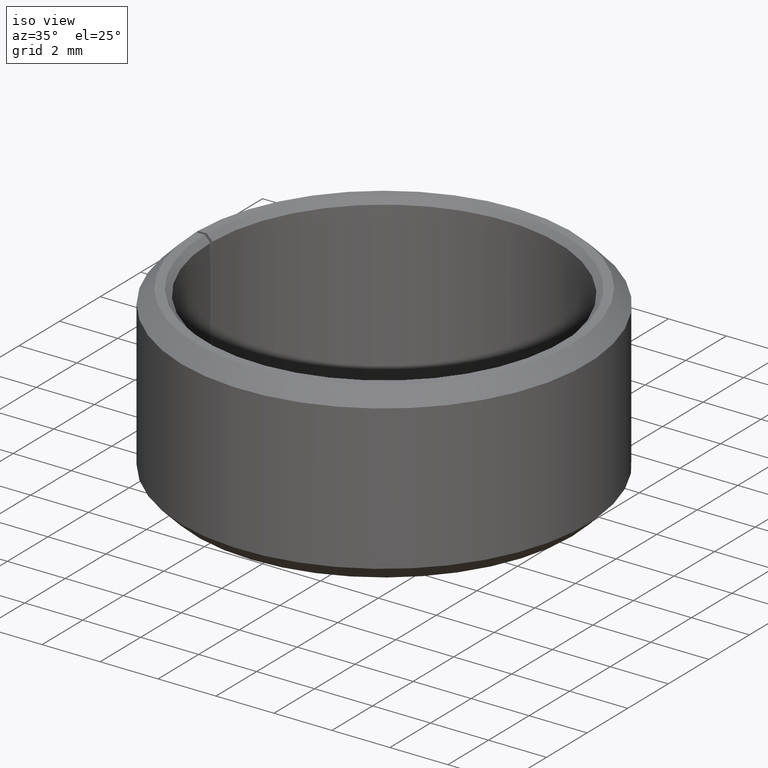
[diagram: clean part render]
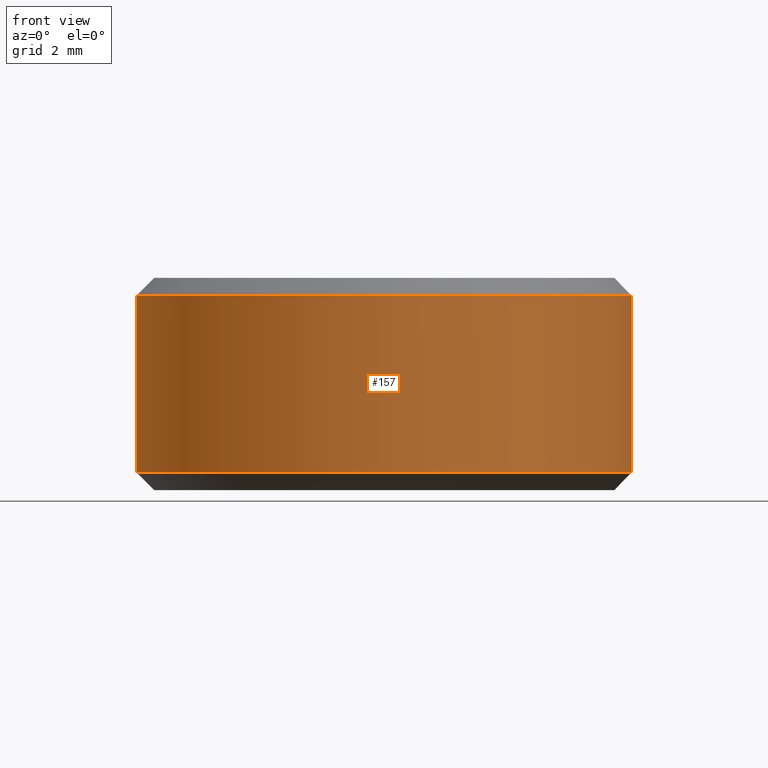
[diagram: tour spotlight — one face highlighted and labeled with its STEP entity id]
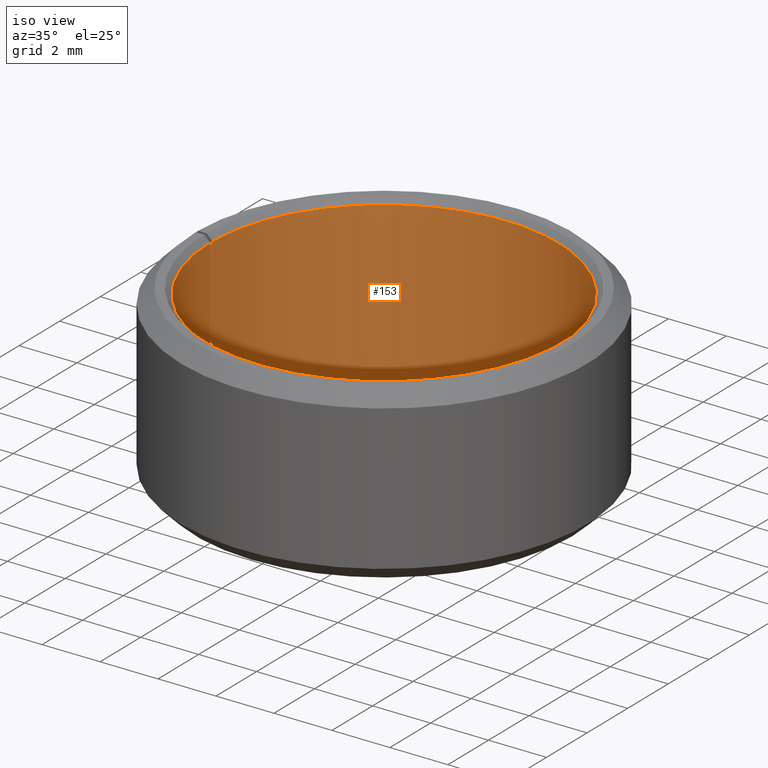
[diagram: tour spotlight — one face highlighted and labeled with its STEP entity id]
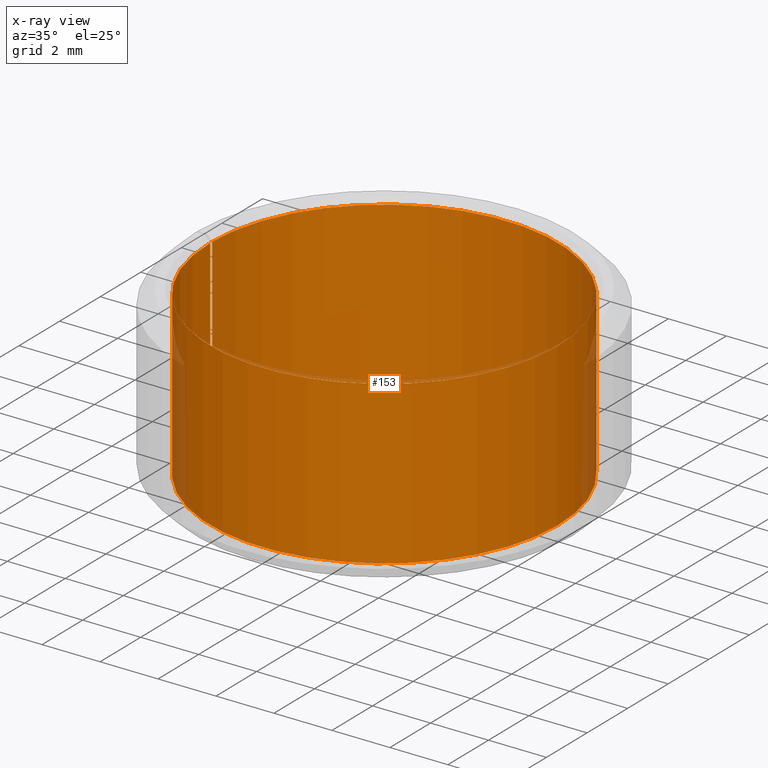
[diagram: x-ray of the same camera — body ghosted, this tour face saturated]
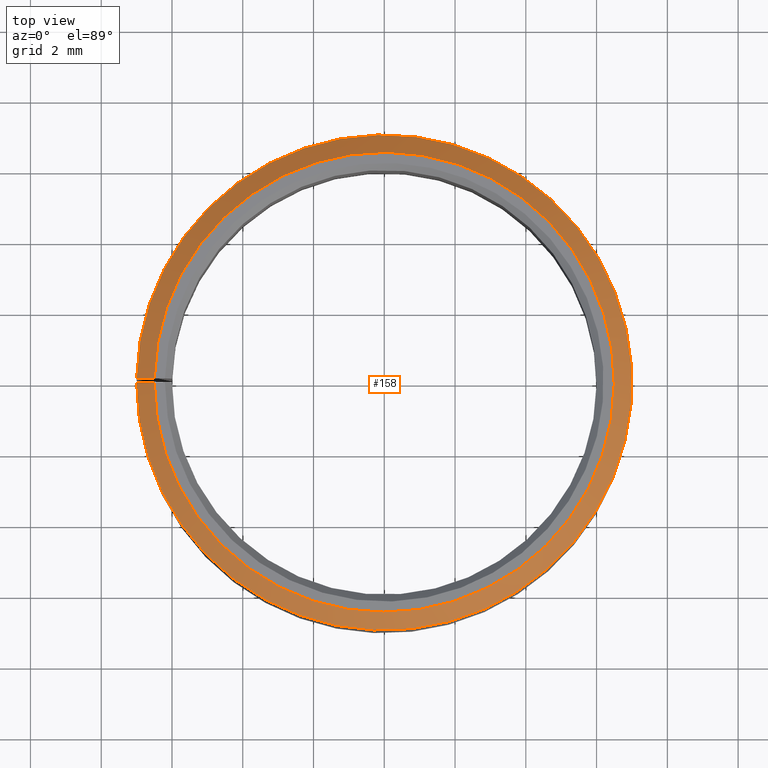
[diagram: tour spotlight — one face highlighted and labeled with its STEP entity id]
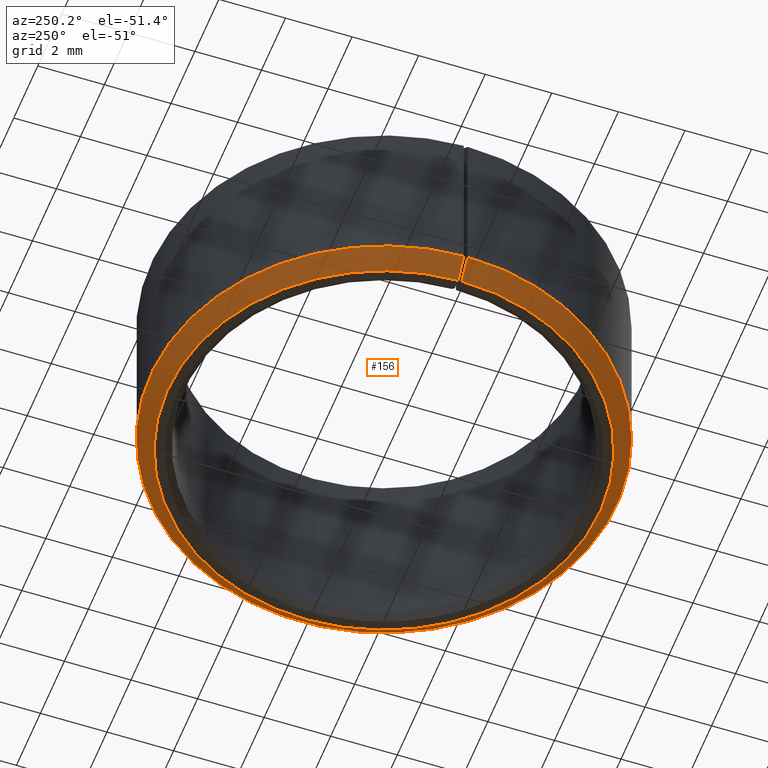
[diagram: tour spotlight — one face highlighted and labeled with its STEP entity id]
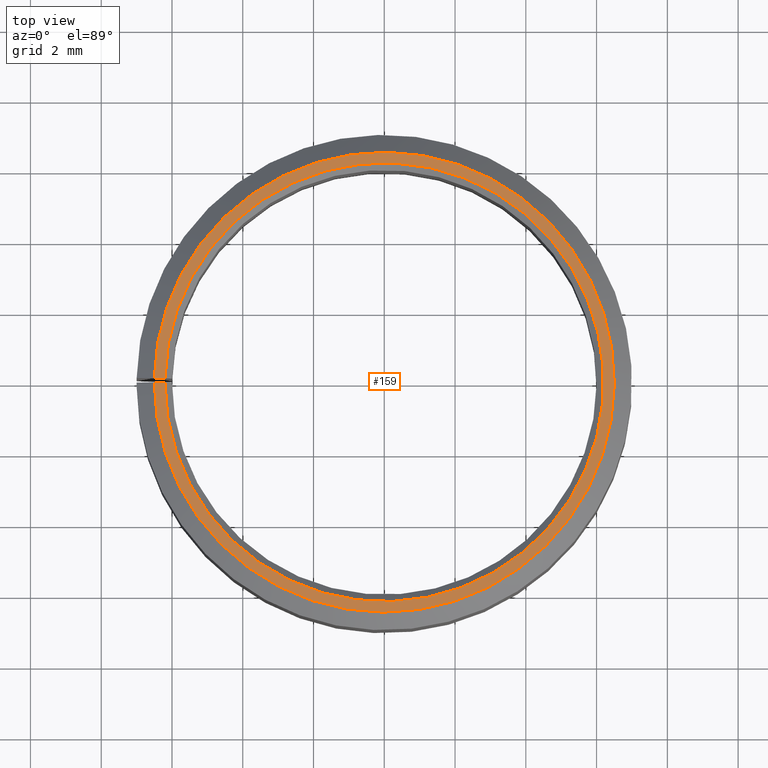
[diagram: tour spotlight — one face highlighted and labeled with its STEP entity id]
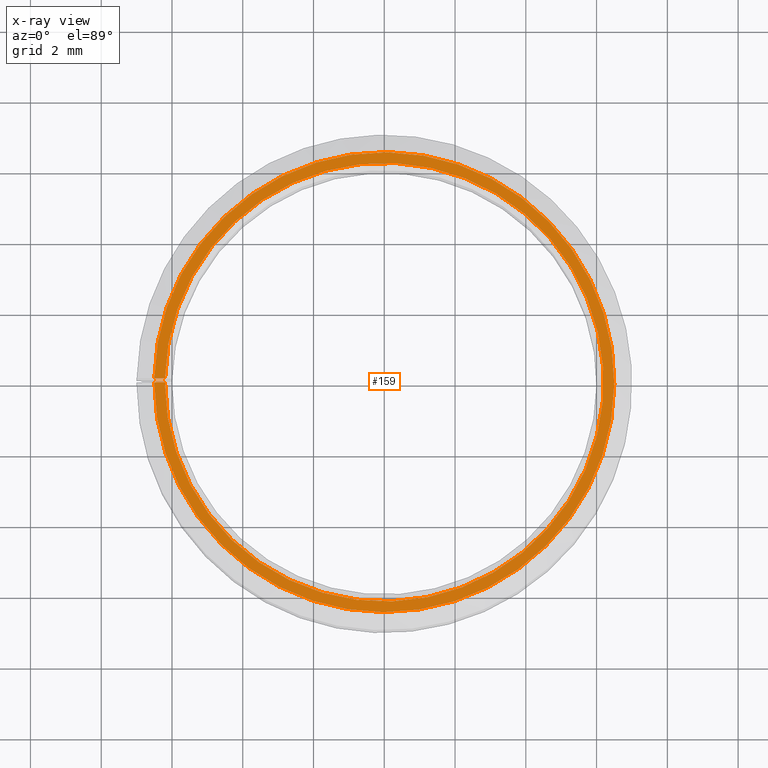
[diagram: x-ray of the same camera — body ghosted, this tour face saturated]
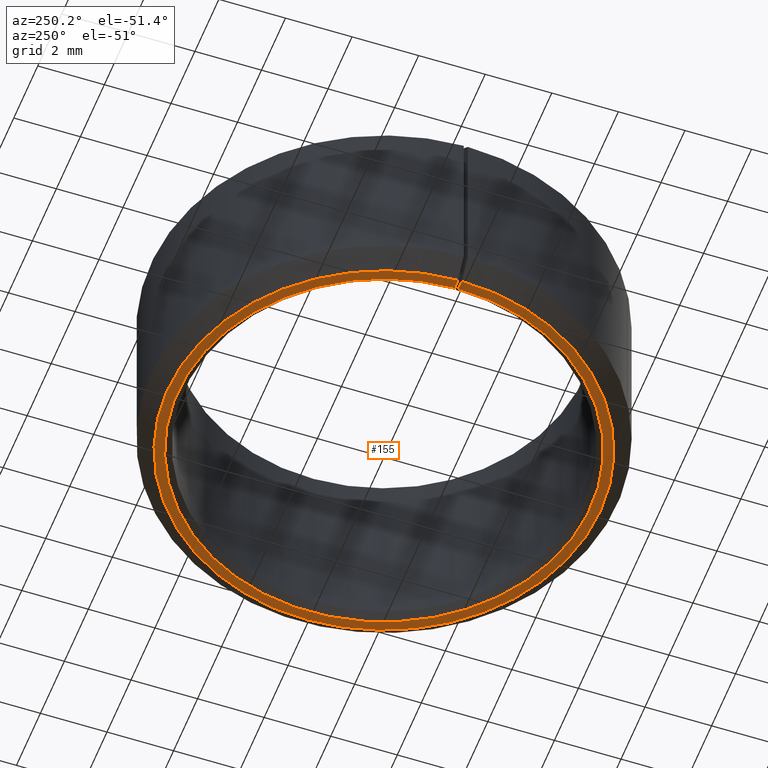
[diagram: tour spotlight — one face highlighted and labeled with its STEP entity id]
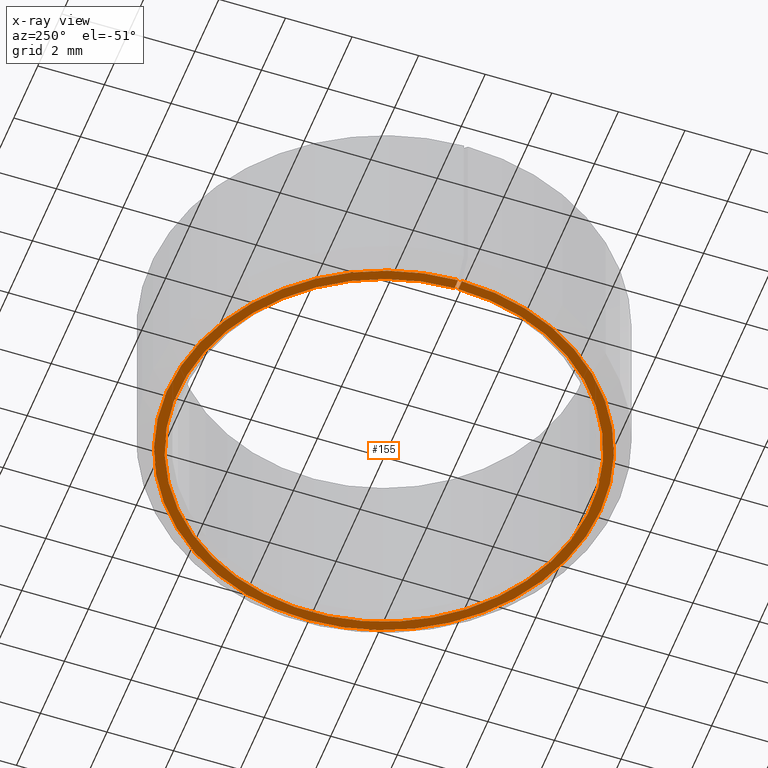
[diagram: x-ray of the same camera — body ghosted, this tour face saturated]
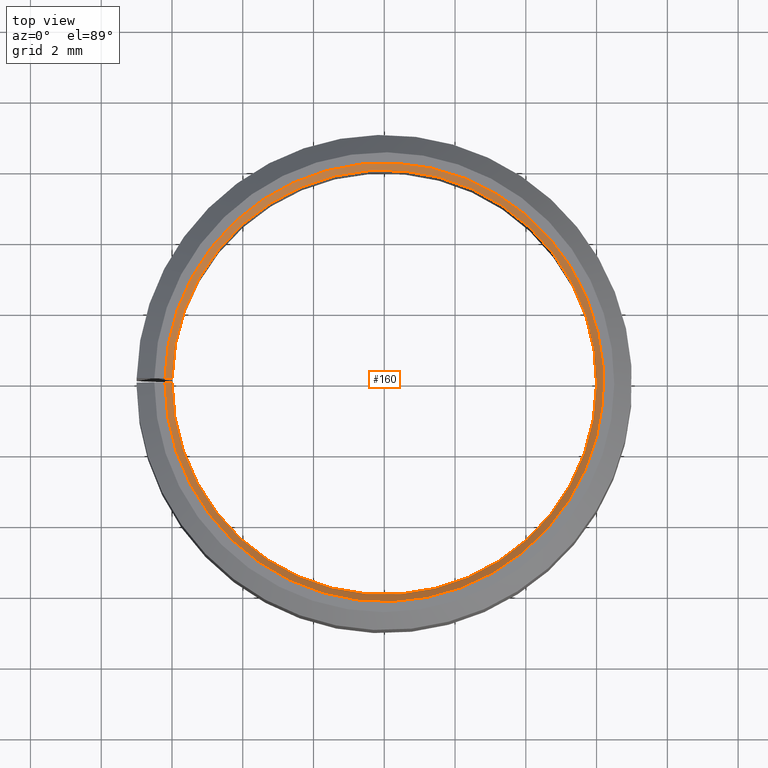
[diagram: tour spotlight — one face highlighted and labeled with its STEP entity id]
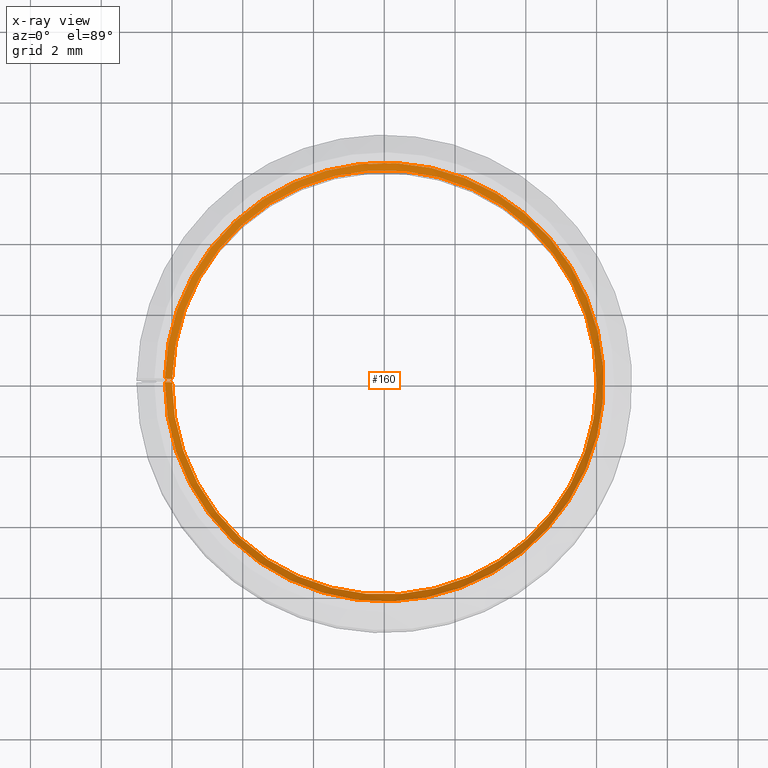
[diagram: x-ray of the same camera — body ghosted, this tour face saturated]
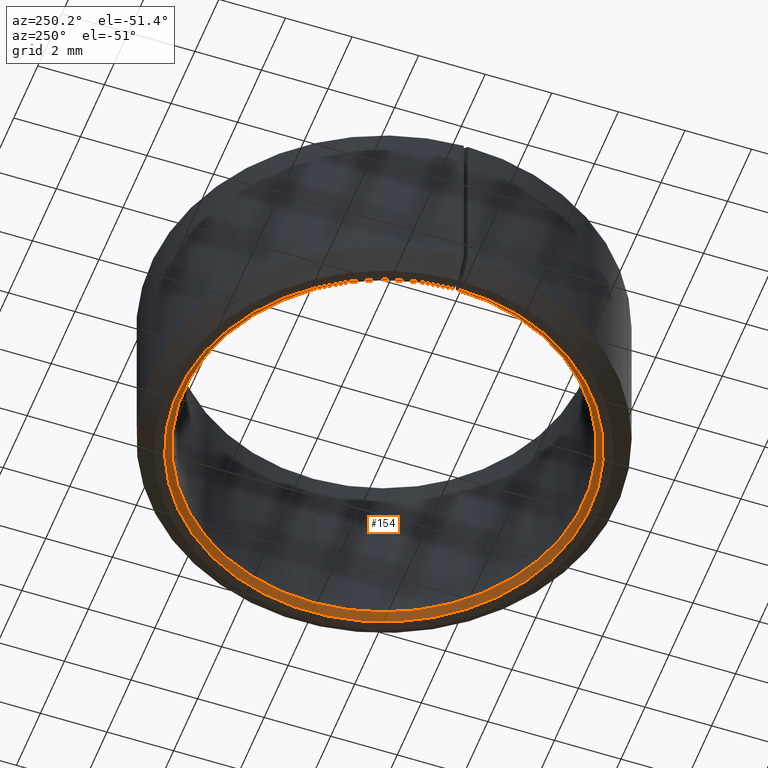
[diagram: tour spotlight — one face highlighted and labeled with its STEP entity id]
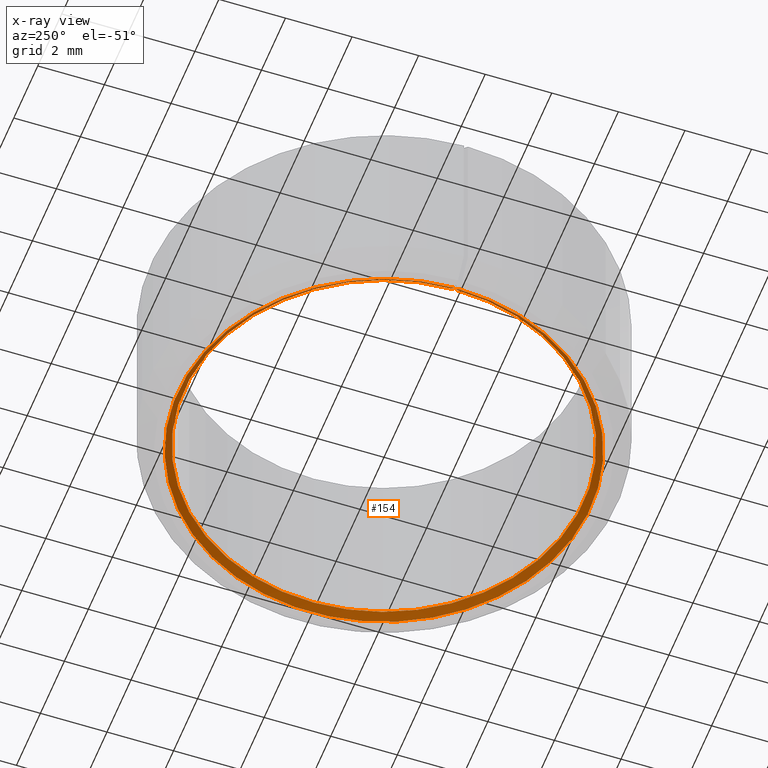
[diagram: x-ray of the same camera — body ghosted, this tour face saturated]
A machine part: a face-by-face anatomy tour. The part has 10 B-rep faces; the first image is the clean iso view, then the 8 largest visible faces are spotlighted one at a time (largest first), each with its STEP entity span.

Face 1 — front view, entity #157. In plain terms, the highlighted cylindrical surface (partial cylindrical patch) has radius 7 mm, axis along (-0, 0, -1).
Definition (entity closure, byte-faithful):
#157=ADVANCED_FACE('',(#173),#174,.T.);
#173=FACE_OUTER_BOUND('',#194,.T.);
#174=CYLINDRICAL_SURFACE('',#195,0.007);
#194=EDGE_LOOP('',(#234,#235,#236,#237));
#195=AXIS2_PLACEMENT_3D('',#238,#239,#240);
#234=ORIENTED_EDGE('',*,*,#297,.T.);
#235=ORIENTED_EDGE('',*,*,#298,.F.);
#236=ORIENTED_EDGE('',*,*,#294,.F.);
#237=ORIENTED_EDGE('',*,*,#299,.T.);
#238=CARTESIAN_POINT('',(-3.46944695195362E-018,-2.60208521396521E-018,-5.42101086242752E-020));
#239=DIRECTION('',(6.12323399573677E-017,0.0,-1.0));
#240=DIRECTION('',(-1.0,0.0,-6.12323399573677E-017));
#294=EDGE_CURVE('',#326,#327,#328,.T.);
#297=EDGE_CURVE('',#331,#332,#333,.T.);
#298=EDGE_CURVE('',#327,#332,#334,.T.);
#299=EDGE_CURVE('',#326,#331,#335,.T.);
#326=VERTEX_POINT('',#372);
#327=VERTEX_POINT('',#373);
#328=CIRCLE('',#374,0.007);
#331=VERTEX_POINT('',#379);
#332=VERTEX_POINT('',#380);
#333=CIRCLE('',#381,0.007);
#334=LINE('',#382,#383);
#335=LINE('',#384,#385);
#372=CARTESIAN_POINT('',(0.000122166845060982,0.00699893386609474,0.0005));
#373=CARTESIAN_POINT('',(-3.46944695195362E-018,0.007,0.0005));
#374=AXIS2_PLACEMENT_3D('',#422,#423,#424);
#379=CARTESIAN_POINT('',(0.000122166845060982,0.00699893386609474,0.0055));
#380=CARTESIAN_POINT('',(-3.46944695195362E-018,0.007,0.0055));
#381=AXIS2_PLACEMENT_3D('',#427,#428,#429);
#382=CARTESIAN_POINT('',(-3.46944695195362E-018,0.007,0.0005));
#383=VECTOR('',#430,1.0);
#384=CARTESIAN_POINT('',(0.000122166845060982,0.00699893386609474,0.0005));
#385=VECTOR('',#431,1.0);
#422=CARTESIAN_POINT('',(-3.46944695195362E-018,-2.60208521396521E-018,0.0005));
#423=DIRECTION('',(6.12323399573677E-017,0.0,-1.0));
#424=DIRECTION('',(-1.0,0.0,-6.12323399573677E-017));
#427=CARTESIAN_POINT('',(-3.46944695195362E-018,-2.60208521396521E-018,0.0055));
#428=DIRECTION('',(6.12323399573677E-017,0.0,-1.0));
#429=DIRECTION('',(-1.0,0.0,-6.12323399573677E-017));
#430=DIRECTION('',(0.0,0.0,1.0));
#431=DIRECTION('',(-9.3259819610035E-021,-1.0686516840419E-018,1.0));

Face 2 — iso view, entity #153. An x-ray twin of the same camera follows (body ghosted, this face saturated) — the face is partly hidden behind the body. In plain terms, the highlighted cylindrical surface (partial cylindrical patch) has radius 6 mm, axis along (-0, 0, -1).
Definition (entity closure, byte-faithful):
#153=ADVANCED_FACE('',(#165),#166,.F.);
#165=FACE_OUTER_BOUND('',#186,.T.);
#166=CYLINDRICAL_SURFACE('',#187,0.006);
#186=EDGE_LOOP('',(#206,#207,#208,#209));
#187=AXIS2_PLACEMENT_3D('',#210,#211,#212);
#206=ORIENTED_EDGE('',*,*,#284,.T.);
#207=ORIENTED_EDGE('',*,*,#285,.F.);
#208=ORIENTED_EDGE('',*,*,#286,.F.);
#209=ORIENTED_EDGE('',*,*,#287,.T.);
#210=CARTESIAN_POINT('',(-3.46944695195362E-018,-2.60208521396521E-018,-5.42101086242752E-020));
#211=DIRECTION('',(6.12323399573677E-017,0.0,-1.0));
#212=DIRECTION('',(-1.0,0.0,-6.12323399573677E-017));
#284=EDGE_CURVE('',#308,#309,#310,.T.);
#285=EDGE_CURVE('',#311,#309,#312,.T.);
#286=EDGE_CURVE('',#313,#311,#314,.T.);
#287=EDGE_CURVE('',#313,#308,#315,.T.);
#308=VERTEX_POINT('',#348);
#309=VERTEX_POINT('',#349);
#310=CIRCLE('',#350,0.006);
#311=VERTEX_POINT('',#351);
#312=LINE('',#352,#353);
#313=VERTEX_POINT('',#354);
#314=CIRCLE('',#355,0.006);
#315=LINE('',#356,#357);
#348=CARTESIAN_POINT('',(0.000104714438623698,0.00599908617093834,0.0002));
#349=CARTESIAN_POINT('',(-3.46944695195362E-018,0.006,0.0002));
#350=AXIS2_PLACEMENT_3D('',#404,#405,#406);
#351=CARTESIAN_POINT('',(-3.46944695195362E-018,0.006,0.0058));
#352=CARTESIAN_POINT('',(-3.46944695195362E-018,0.006,0.0058));
#353=VECTOR('',#407,1.0);
#354=CARTESIAN_POINT('',(0.000104714438623698,0.00599908617093834,0.0058));
#355=AXIS2_PLACEMENT_3D('',#408,#409,#410);
#356=CARTESIAN_POINT('',(0.000104714438623698,0.00599908617093834,0.0058));
#357=VECTOR('',#411,1.0);
#404=CARTESIAN_POINT('',(-3.46944695195362E-018,-2.60208521396521E-018,0.0002));
#405=DIRECTION('',(6.12323399573677E-017,0.0,-1.0));
#406=DIRECTION('',(-1.0,0.0,-6.12323399573677E-017));
#407=DIRECTION('',(0.0,0.0,-1.0));
#408=CARTESIAN_POINT('',(-3.46944695195362E-018,-2.60208521396521E-018,0.0058));
#409=DIRECTION('',(6.12323399573677E-017,0.0,-1.0));
#410=DIRECTION('',(-1.0,0.0,-6.12323399573677E-017));
#411=DIRECTION('',(9.3259819610035E-021,1.0686516840419E-018,-1.0));

Face 3 — top view, entity #158. In plain terms, the highlighted conical surface has half-angle 45 deg.
Definition (entity closure, byte-faithful):
#158=ADVANCED_FACE('',(#175),#176,.T.);
#175=FACE_OUTER_BOUND('',#196,.T.);
#176=CONICAL_SURFACE('',#197,0.007,0.785398163397446);
#196=EDGE_LOOP('',(#241,#242,#243,#244));
#197=AXIS2_PLACEMENT_3D('',#245,#246,#247);
#241=ORIENTED_EDGE('',*,*,#300,.T.);
#242=ORIENTED_EDGE('',*,*,#301,.F.);
#243=ORIENTED_EDGE('',*,*,#297,.F.);
#244=ORIENTED_EDGE('',*,*,#302,.T.);
#245=CARTESIAN_POINT('',(-3.46944695195362E-018,-2.60208521396521E-018,0.0055));
#246=DIRECTION('',(6.12323399573677E-017,-0.0,-1.0));
#247=DIRECTION('',(-1.0,0.0,-6.12323399573677E-017));
#297=EDGE_CURVE('',#331,#332,#333,.T.);
#300=EDGE_CURVE('',#336,#337,#338,.T.);
#301=EDGE_CURVE('',#332,#337,#339,.T.);
#302=EDGE_CURVE('',#331,#336,#340,.T.);
#331=VERTEX_POINT('',#379);
#332=VERTEX_POINT('',#380);
#333=CIRCLE('',#381,0.007);
#336=VERTEX_POINT('',#386);
#337=VERTEX_POINT('',#387);
#338=CIRCLE('',#388,0.0065);
#339=LINE('',#389,#390);
#340=LINE('',#391,#392);
#379=CARTESIAN_POINT('',(0.000122166845060982,0.00699893386609474,0.0055));
#380=CARTESIAN_POINT('',(-3.46944695195362E-018,0.007,0.0055));
#381=AXIS2_PLACEMENT_3D('',#427,#428,#429);
#386=CARTESIAN_POINT('',(0.00011344064184234,0.00649901001851654,0.006));
#387=CARTESIAN_POINT('',(-3.46944695195362E-018,0.0065,0.006));
#388=AXIS2_PLACEMENT_3D('',#432,#433,#434);
#389=CARTESIAN_POINT('',(-3.46944695195362E-018,0.007,0.0055));
#390=VECTOR('',#435,1.0);
#391=CARTESIAN_POINT('',(0.000122166845060982,0.00699893386609474,0.0055));
#392=VECTOR('',#436,1.0);
#427=CARTESIAN_POINT('',(-3.46944695195362E-018,-2.60208521396521E-018,0.0055));
#428=DIRECTION('',(6.12323399573677E-017,0.0,-1.0));
#429=DIRECTION('',(-1.0,0.0,-6.12323399573677E-017));
#432=CARTESIAN_POINT('',(-3.46944695195362E-018,-2.60208521396521E-018,0.006));
#433=DIRECTION('',(6.12323399573677E-017,0.0,-1.0));
#434=DIRECTION('',(-1.0,0.0,-6.12323399573677E-017));
#435=DIRECTION('',(0.0,-0.707106781186545,0.70710678118655));
#436=DIRECTION('',(-0.0123407149398269,-0.706999085398822,0.70710678118655));

Face 4 — auxiliary view, entity #156. In plain terms, the highlighted conical surface has half-angle 45 deg.
Definition (entity closure, byte-faithful):
#156=ADVANCED_FACE('',(#171),#172,.T.);
#171=FACE_OUTER_BOUND('',#192,.T.);
#172=CONICAL_SURFACE('',#193,0.0065,0.785398163397446);
#192=EDGE_LOOP('',(#227,#228,#229,#230));
#193=AXIS2_PLACEMENT_3D('',#231,#232,#233);
#227=ORIENTED_EDGE('',*,*,#294,.T.);
#228=ORIENTED_EDGE('',*,*,#295,.F.);
#229=ORIENTED_EDGE('',*,*,#291,.F.);
#230=ORIENTED_EDGE('',*,*,#296,.T.);
#231=CARTESIAN_POINT('',(-3.46944695195362E-018,-2.60208521396521E-018,-9.21571846612679E-019));
#232=DIRECTION('',(-6.12323399573677E-017,0.0,1.0));
#233=DIRECTION('',(1.0,0.0,6.12323399573677E-017));
#291=EDGE_CURVE('',#321,#322,#323,.T.);
#294=EDGE_CURVE('',#326,#327,#328,.T.);
#295=EDGE_CURVE('',#322,#327,#329,.T.);
#296=EDGE_CURVE('',#321,#326,#330,.T.);
#321=VERTEX_POINT('',#365);
#322=VERTEX_POINT('',#366);
#323=CIRCLE('',#367,0.0065);
#326=VERTEX_POINT('',#372);
#327=VERTEX_POINT('',#373);
#328=CIRCLE('',#374,0.007);
#329=LINE('',#375,#376);
#330=LINE('',#377,#378);
#365=CARTESIAN_POINT('',(0.00011344064184234,0.00649901001851654,-9.14625610666406E-019));
#366=CARTESIAN_POINT('',(-3.46944695195362E-018,0.0065,-9.21571846612679E-019));
#367=AXIS2_PLACEMENT_3D('',#417,#418,#419);
#372=CARTESIAN_POINT('',(0.000122166845060982,0.00699893386609474,0.0005));
#373=CARTESIAN_POINT('',(-3.46944695195362E-018,0.007,0.0005));
#374=AXIS2_PLACEMENT_3D('',#422,#423,#424);
#375=CARTESIAN_POINT('',(-3.46944695195362E-018,0.0065,-9.21571846612679E-019));
#376=VECTOR('',#425,1.0);
#377=CARTESIAN_POINT('',(0.00011344064184234,0.00649901001851654,-9.14625610666406E-019));
#378=VECTOR('',#426,1.0);
#417=CARTESIAN_POINT('',(-3.46944695195362E-018,-2.60208521396521E-018,-9.21571846612679E-019));
#418=DIRECTION('',(6.12323399573677E-017,0.0,-1.0));
#419=DIRECTION('',(-1.0,0.0,-6.12323399573677E-017));
#422=CARTESIAN_POINT('',(-3.46944695195362E-018,-2.60208521396521E-018,0.0005));
#423=DIRECTION('',(6.12323399573677E-017,0.0,-1.0));
#424=DIRECTION('',(-1.0,0.0,-6.12323399573677E-017));
#425=DIRECTION('',(0.0,0.707106781186545,0.70710678118655));
#426=DIRECTION('',(0.0123407149398269,0.706999085398822,0.70710678118655));

Face 5 — top view, entity #159. An x-ray twin of the same camera follows (body ghosted, this face saturated) — the face is partly hidden behind the body. In plain terms, the highlighted planar face has unit normal (0, -0, 1).
Definition (entity closure, byte-faithful):
#159=ADVANCED_FACE('',(#177),#178,.T.);
#177=FACE_OUTER_BOUND('',#198,.T.);
#178=PLANE('',#199);
#198=EDGE_LOOP('',(#248,#249,#250,#251));
#199=AXIS2_PLACEMENT_3D('',#252,#253,#254);
#248=ORIENTED_EDGE('',*,*,#303,.T.);
#249=ORIENTED_EDGE('',*,*,#304,.T.);
#250=ORIENTED_EDGE('',*,*,#305,.F.);
#251=ORIENTED_EDGE('',*,*,#300,.F.);
#252=CARTESIAN_POINT('',(0.00011344064184234,0.00649901001851654,0.006));
#253=DIRECTION('',(-6.12323399573677E-017,0.0,1.0));
#254=DIRECTION('',(1.0,0.0,6.12323399573677E-017));
#300=EDGE_CURVE('',#336,#337,#338,.T.);
#303=EDGE_CURVE('',#336,#341,#342,.T.);
#304=EDGE_CURVE('',#341,#343,#344,.T.);
#305=EDGE_CURVE('',#337,#343,#345,.T.);
#336=VERTEX_POINT('',#386);
#337=VERTEX_POINT('',#387);
#338=CIRCLE('',#388,0.0065);
#341=VERTEX_POINT('',#393);
#342=LINE('',#394,#395);
#343=VERTEX_POINT('',#396);
#344=CIRCLE('',#397,0.0062);
#345=LINE('',#398,#399);
#386=CARTESIAN_POINT('',(0.00011344064184234,0.00649901001851654,0.006));
#387=CARTESIAN_POINT('',(-3.46944695195362E-018,0.0065,0.006));
#388=AXIS2_PLACEMENT_3D('',#432,#433,#434);
#393=CARTESIAN_POINT('',(0.000108204919911155,0.00619905570996962,0.006));
#394=CARTESIAN_POINT('',(0.00011344064184234,0.00649901001851654,0.006));
#395=VECTOR('',#437,1.0);
#396=CARTESIAN_POINT('',(-3.46944695195362E-018,0.0062,0.006));
#397=AXIS2_PLACEMENT_3D('',#438,#439,#440);
#398=CARTESIAN_POINT('',(-3.46944695195362E-018,0.0065,0.006));
#399=VECTOR('',#441,1.0);
#432=CARTESIAN_POINT('',(-3.46944695195362E-018,-2.60208521396521E-018,0.006));
#433=DIRECTION('',(6.12323399573677E-017,0.0,-1.0));
#434=DIRECTION('',(-1.0,0.0,-6.12323399573677E-017));
#437=DIRECTION('',(-0.0174524064372836,-0.999847695156391,-1.0686516840419E-018));
#438=CARTESIAN_POINT('',(-3.46944695195362E-018,-2.60208521396521E-018,0.006));
#439=DIRECTION('',(6.12323399573677E-017,0.0,-1.0));
#440=DIRECTION('',(-1.0,0.0,-6.12323399573677E-017));
#441=DIRECTION('',(0.0,-1.0,0.0));

Face 6 — auxiliary view, entity #155. An x-ray twin of the same camera follows (body ghosted, this face saturated) — the face is partly hidden behind the body. In plain terms, the highlighted planar face has unit normal (-0, 0, -1).
Definition (entity closure, byte-faithful):
#155=ADVANCED_FACE('',(#169),#170,.T.);
#169=FACE_OUTER_BOUND('',#190,.T.);
#170=PLANE('',#191);
#190=EDGE_LOOP('',(#220,#221,#222,#223));
#191=AXIS2_PLACEMENT_3D('',#224,#225,#226);
#220=ORIENTED_EDGE('',*,*,#291,.T.);
#221=ORIENTED_EDGE('',*,*,#292,.F.);
#222=ORIENTED_EDGE('',*,*,#288,.F.);
#223=ORIENTED_EDGE('',*,*,#293,.T.);
#224=CARTESIAN_POINT('',(0.000108204919911155,0.00619905570996962,-9.28498733327688E-019));
#225=DIRECTION('',(6.12323399573677E-017,0.0,-1.0));
#226=DIRECTION('',(-1.0,0.0,-6.12323399573677E-017));
#288=EDGE_CURVE('',#316,#317,#318,.T.);
#291=EDGE_CURVE('',#321,#322,#323,.T.);
#292=EDGE_CURVE('',#317,#322,#324,.T.);
#293=EDGE_CURVE('',#316,#321,#325,.T.);
#316=VERTEX_POINT('',#358);
#317=VERTEX_POINT('',#359);
#318=CIRCLE('',#360,0.0062);
#321=VERTEX_POINT('',#365);
#322=VERTEX_POINT('',#366);
#323=CIRCLE('',#367,0.0065);
#324=LINE('',#368,#369);
#325=LINE('',#370,#371);
#358=CARTESIAN_POINT('',(0.000108204919911155,0.00619905570996962,-9.42051260483757E-019));
#359=CARTESIAN_POINT('',(-3.46944695195362E-018,0.0062,-9.48676900924816E-019));
#360=AXIS2_PLACEMENT_3D('',#412,#413,#414);
#365=CARTESIAN_POINT('',(0.00011344064184234,0.00649901001851654,-9.14625610666406E-019));
#366=CARTESIAN_POINT('',(-3.46944695195362E-018,0.0065,-9.21571846612679E-019));
#367=AXIS2_PLACEMENT_3D('',#417,#418,#419);
#368=CARTESIAN_POINT('',(-3.46944695195362E-018,0.0062,-9.48202272001843E-019));
#369=VECTOR('',#420,1.0);
#370=CARTESIAN_POINT('',(0.000108204919911155,0.00619905570996962,-9.41576631560784E-019));
#371=VECTOR('',#421,1.0);
#412=CARTESIAN_POINT('',(-3.46944695195362E-018,-2.60208521396521E-018,-9.48676900924816E-019));
#413=DIRECTION('',(6.12323399573677E-017,0.0,-1.0));
#414=DIRECTION('',(-1.0,0.0,-6.12323399573677E-017));
#417=CARTESIAN_POINT('',(-3.46944695195362E-018,-2.60208521396521E-018,-9.21571846612679E-019));
#418=DIRECTION('',(6.12323399573677E-017,0.0,-1.0));
#419=DIRECTION('',(-1.0,0.0,-6.12323399573677E-017));
#420=DIRECTION('',(0.0,1.0,8.8768084630548E-017));
#421=DIRECTION('',(0.0174524064372836,0.999847695156391,8.98367363145899E-017));

Face 7 — top view, entity #160. An x-ray twin of the same camera follows (body ghosted, this face saturated) — the face is partly hidden behind the body. In plain terms, the highlighted conical surface has half-angle 45 deg.
Definition (entity closure, byte-faithful):
#160=ADVANCED_FACE('',(#179),#180,.F.);
#179=FACE_OUTER_BOUND('',#200,.T.);
#180=CONICAL_SURFACE('',#201,0.0062,0.785398163397455);
#200=EDGE_LOOP('',(#255,#256,#257,#258));
#201=AXIS2_PLACEMENT_3D('',#259,#260,#261);
#255=ORIENTED_EDGE('',*,*,#286,.T.);
#256=ORIENTED_EDGE('',*,*,#306,.F.);
#257=ORIENTED_EDGE('',*,*,#304,.F.);
#258=ORIENTED_EDGE('',*,*,#307,.T.);
#259=CARTESIAN_POINT('',(-3.46944695195362E-018,-2.60208521396521E-018,0.006));
#260=DIRECTION('',(-6.12323399573677E-017,0.0,1.0));
#261=DIRECTION('',(1.0,0.0,6.12323399573677E-017));
#286=EDGE_CURVE('',#313,#311,#314,.T.);
#304=EDGE_CURVE('',#341,#343,#344,.T.);
#306=EDGE_CURVE('',#343,#311,#346,.T.);
#307=EDGE_CURVE('',#341,#313,#347,.T.);
#311=VERTEX_POINT('',#351);
#313=VERTEX_POINT('',#354);
#314=CIRCLE('',#355,0.006);
#341=VERTEX_POINT('',#393);
#343=VERTEX_POINT('',#396);
#344=CIRCLE('',#397,0.0062);
#346=LINE('',#400,#401);
#347=LINE('',#402,#403);
#351=CARTESIAN_POINT('',(-3.46944695195362E-018,0.006,0.0058));
#354=CARTESIAN_POINT('',(0.000104714438623698,0.00599908617093834,0.0058));
#355=AXIS2_PLACEMENT_3D('',#408,#409,#410);
#393=CARTESIAN_POINT('',(0.000108204919911155,0.00619905570996962,0.006));
#396=CARTESIAN_POINT('',(-3.46944695195362E-018,0.0062,0.006));
#397=AXIS2_PLACEMENT_3D('',#438,#439,#440);
#400=CARTESIAN_POINT('',(-3.46944695195362E-018,0.0062,0.006));
#401=VECTOR('',#442,1.0);
#402=CARTESIAN_POINT('',(0.000108204919911155,0.00619905570996962,0.006));
#403=VECTOR('',#443,1.0);
#408=CARTESIAN_POINT('',(-3.46944695195362E-018,-2.60208521396521E-018,0.0058));
#409=DIRECTION('',(6.12323399573677E-017,0.0,-1.0));
#410=DIRECTION('',(-1.0,0.0,-6.12323399573677E-017));
#438=CARTESIAN_POINT('',(-3.46944695195362E-018,-2.60208521396521E-018,0.006));
#439=DIRECTION('',(6.12323399573677E-017,0.0,-1.0));
#440=DIRECTION('',(-1.0,0.0,-6.12323399573677E-017));
#442=DIRECTION('',(0.0,-0.707106781186552,-0.707106781186543));
#443=DIRECTION('',(-0.012340714939827,-0.706999085398829,-0.707106781186543));

Face 8 — auxiliary view, entity #154. An x-ray twin of the same camera follows (body ghosted, this face saturated) — the face is partly hidden behind the body. In plain terms, the highlighted conical surface has half-angle 45 deg.
Definition (entity closure, byte-faithful):
#154=ADVANCED_FACE('',(#167),#168,.F.);
#167=FACE_OUTER_BOUND('',#188,.T.);
#168=CONICAL_SURFACE('',#189,0.006,0.785398163397448);
#188=EDGE_LOOP('',(#213,#214,#215,#216));
#189=AXIS2_PLACEMENT_3D('',#217,#218,#219);
#213=ORIENTED_EDGE('',*,*,#288,.T.);
#214=ORIENTED_EDGE('',*,*,#289,.F.);
#215=ORIENTED_EDGE('',*,*,#284,.F.);
#216=ORIENTED_EDGE('',*,*,#290,.T.);
#217=CARTESIAN_POINT('',(-3.46944695195362E-018,-2.60208521396521E-018,0.0002));
#218=DIRECTION('',(6.12323399573677E-017,-0.0,-1.0));
#219=DIRECTION('',(-1.0,0.0,-6.12323399573677E-017));
#284=EDGE_CURVE('',#308,#309,#310,.T.);
#288=EDGE_CURVE('',#316,#317,#318,.T.);
#289=EDGE_CURVE('',#309,#317,#319,.T.);
#290=EDGE_CURVE('',#308,#316,#320,.T.);
#308=VERTEX_POINT('',#348);
#309=VERTEX_POINT('',#349);
#310=CIRCLE('',#350,0.006);
#316=VERTEX_POINT('',#358);
#317=VERTEX_POINT('',#359);
#318=CIRCLE('',#360,0.0062);
#319=LINE('',#361,#362);
#320=LINE('',#363,#364);
#348=CARTESIAN_POINT('',(0.000104714438623698,0.00599908617093834,0.0002));
#349=CARTESIAN_POINT('',(-3.46944695195362E-018,0.006,0.0002));
#350=AXIS2_PLACEMENT_3D('',#404,#405,#406);
#358=CARTESIAN_POINT('',(0.000108204919911155,0.00619905570996962,-9.42051260483757E-019));
#359=CARTESIAN_POINT('',(-3.46944695195362E-018,0.0062,-9.48676900924816E-019));
#360=AXIS2_PLACEMENT_3D('',#412,#413,#414);
#361=CARTESIAN_POINT('',(-3.46944695195362E-018,0.006,0.0002));
#362=VECTOR('',#415,1.0);
#363=CARTESIAN_POINT('',(0.000104714438623698,0.00599908617093834,0.0002));
#364=VECTOR('',#416,1.0);
#404=CARTESIAN_POINT('',(-3.46944695195362E-018,-2.60208521396521E-018,0.0002));
#405=DIRECTION('',(6.12323399573677E-017,0.0,-1.0));
#406=DIRECTION('',(-1.0,0.0,-6.12323399573677E-017));
#412=CARTESIAN_POINT('',(-3.46944695195362E-018,-2.60208521396521E-018,-9.48676900924816E-019));
#413=DIRECTION('',(6.12323399573677E-017,0.0,-1.0));
#414=DIRECTION('',(-1.0,0.0,-6.12323399573677E-017));
#415=DIRECTION('',(0.0,0.707106781186547,-0.707106781186548));
#416=DIRECTION('',(0.0123407149398269,0.706999085398824,-0.707106781186548));